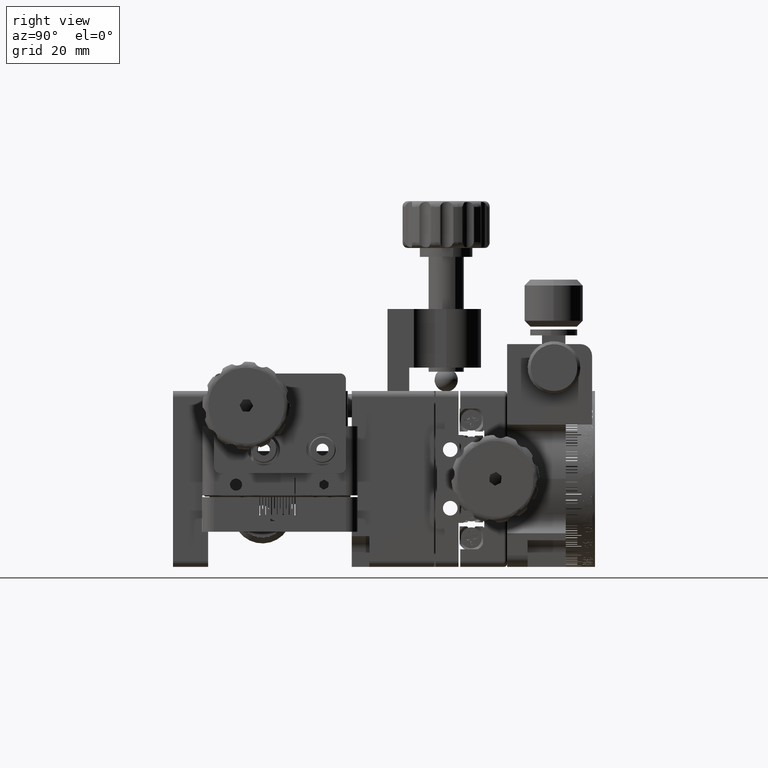
[diagram: clean part render]
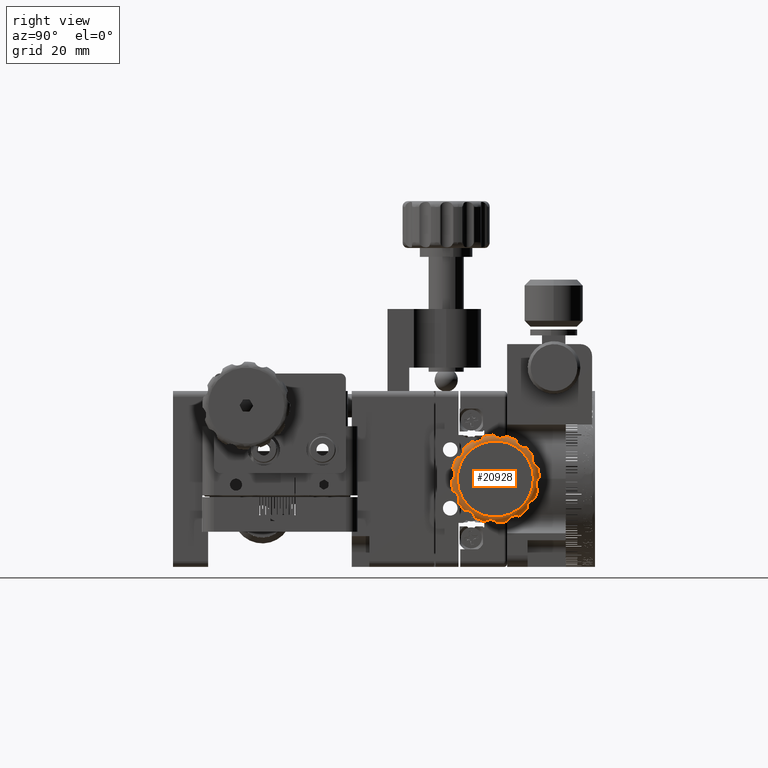
[diagram: same view with one face highlighted and labeled with its STEP entity id]
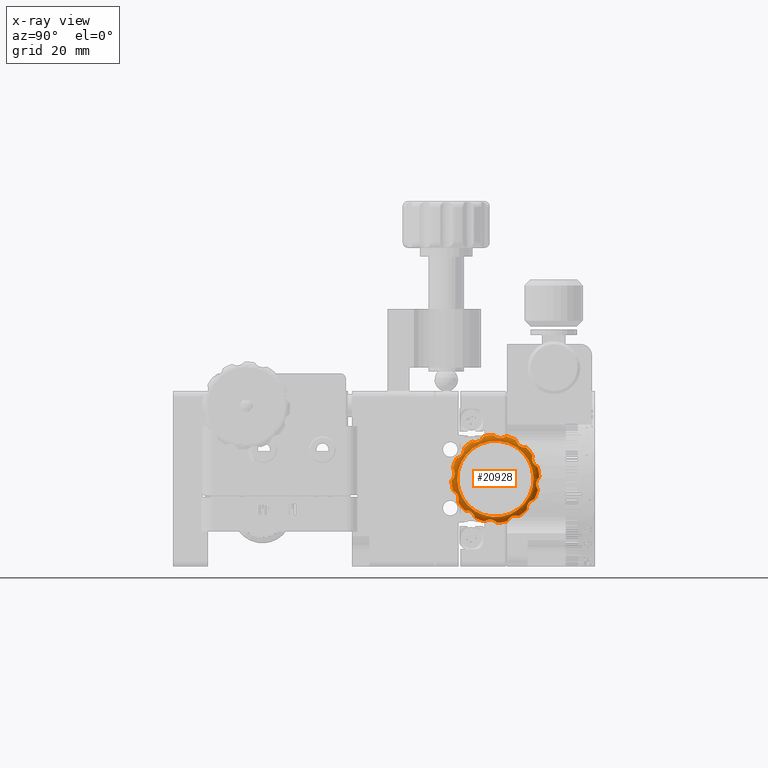
[diagram: x-ray of the same camera — body ghosted, the highlighted face saturated]
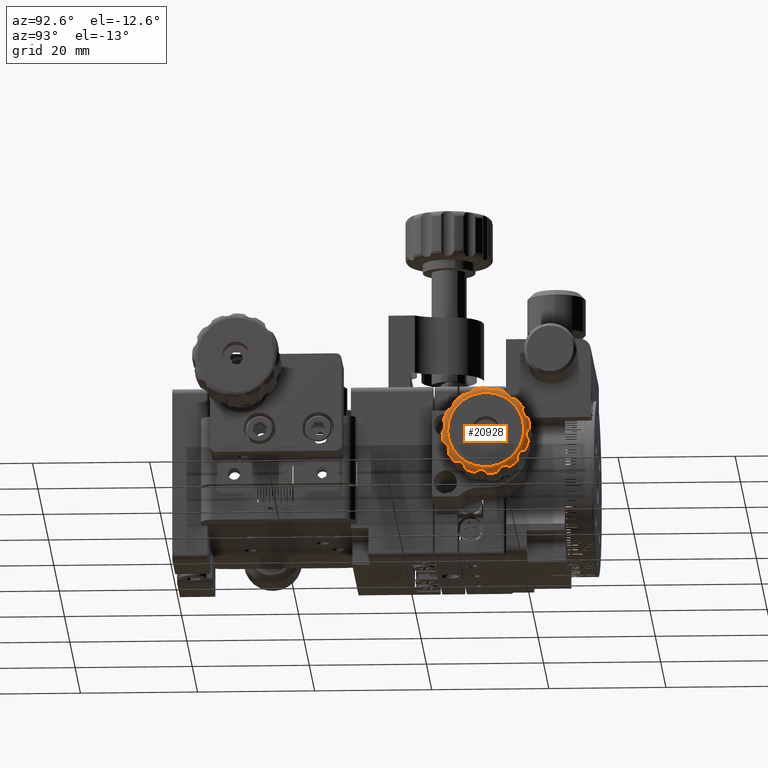
[diagram: same view with one face highlighted and labeled with its STEP entity id]
A machine part, right view. The second image highlights one B-rep face of the part: STEP entity #20928.
The next image is the same camera in x-ray: the body ghosted, the highlighted face saturated — about 0% of this face is hidden behind the body in this view.
A second angle (auxiliary view) of the same face is appended — the face is thin or edge-on in the first view.
In plain terms, the highlighted toroidal blend (fillet) surface has major radius 6.5 mm and minor (blend) radius 1 mm.
Its self-contained STEP definition (entity closure, byte-faithful):
#260 = EDGE_CURVE ( 'NONE', #61691, #50468, #27512, .T. ) ;
#384 = CARTESIAN_POINT ( 'NONE',  ( 47.26652873893148410, 48.68455943724477208, -3.020572762659842869 ) ) ;
#548 = CARTESIAN_POINT ( 'NONE',  ( 46.83185989159577645, 61.32273020653367723, 3.852477847529804489 ) ) ;
#858 = ORIENTED_EDGE ( 'NONE', *, *, #62199, .T. ) ;
#1039 = ORIENTED_EDGE ( 'NONE', *, *, #52085, .T. ) ;
#1058 = CARTESIAN_POINT ( 'NONE',  ( 46.83185989159770912, 53.28500716191043551, -7.200220927021965700 ) ) ;
#1060 = ORIENTED_EDGE ( 'NONE', *, *, #49188, .T. ) ;
#1061 = ORIENTED_EDGE ( 'NONE', *, *, #77938, .F. ) ;
#1431 = CARTESIAN_POINT ( 'NONE',  ( 47.26635177602136650, 55.93072871551091652, 6.940997425414120237 ) ) ;
#1506 = CARTESIAN_POINT ( 'NONE',  ( 47.24330478062866234, 49.08052759585812197, 3.826221039453158834 ) ) ;
#1908 = CARTESIAN_POINT ( 'NONE',  ( 46.98417736465966499, 48.62290576666092079, 3.581144400315304122 ) ) ;
#1944 = CARTESIAN_POINT ( 'NONE',  ( 47.14391553794396827, 62.17256693332509343, -0.1090325314070224316 ) ) ;
#2126 = CARTESIAN_POINT ( 'NONE',  ( 46.40041507641972629, 55.40805335564428447, -7.489006621978634648 ) ) ;
#2287 = EDGE_CURVE ( 'NONE', #17178, #10969, #31065, .T. ) ;
#2395 = B_SPLINE_CURVE_WITH_KNOTS ( 'NONE', 3,
 ( #40334, #3297, #28132, #77726 ),
 .UNSPECIFIED., .F., .F.,
 ( 4, 4 ),
 ( -6.324575239414876783E-06, 0.0004951179910540117477 ),
 .UNSPECIFIED. ) ;
#2428 = CARTESIAN_POINT ( 'NONE',  ( 46.40041507641978313, 62.24134818637973154, -1.960513259136835273 ) ) ;
#2564 = CARTESIAN_POINT ( 'NONE',  ( 46.54545196661403850, 51.53685944605913249, -6.651956488160115200 ) ) ;
#3118 = CARTESIAN_POINT ( 'NONE',  ( 46.69148169134702187, 49.82297133232177799, -5.382419387779893150 ) ) ;
#3248 = CARTESIAN_POINT ( 'NONE',  ( 47.09930507970731384, 47.93446650023034294, 1.472619361597266252 ) ) ;
#3297 = CARTESIAN_POINT ( 'NONE',  ( 46.54631419925591018, 60.26207300170399606, 5.346921843518500417 ) ) ;
#3681 = CIRCLE ( 'NONE', #27116, 6.500000000000055067 ) ;
#3832 = VERTEX_POINT ( 'NONE', #15782 ) ;
#4234 = EDGE_CURVE ( 'NONE', #19371, #60169, #19230, .T. ) ;
#4289 = CARTESIAN_POINT ( 'NONE',  ( 46.40041507641972629, 53.04160929456984519, -7.239225632673042199 ) ) ;
#4345 = CARTESIAN_POINT ( 'NONE',  ( 47.09966414584079786, 51.36153836937482708, -6.233898171381881070 ) ) ;
#4383 = CARTESIAN_POINT ( 'NONE',  ( 46.40041507641978313, 55.00212255370681902, 2.549339453190980450E-15 ) ) ;
#4609 = EDGE_CURVE ( 'NONE', #17178, #13875, #54940, .T. ) ;
#4674 = CARTESIAN_POINT ( 'NONE',  ( 47.40041507641979024, 55.00212255370681902, 2.697900290614080356E-15 ) ) ;
#4684 = CARTESIAN_POINT ( 'NONE',  ( 46.54545196661545958, 47.50872769626775494, -0.3249723620626735476 ) ) ;
#4758 = CARTESIAN_POINT ( 'NONE',  ( 46.83185989159771623, 49.91494653967091466, -5.377016539763300074 ) ) ;
#4798 = DIRECTION ( 'NONE',  ( 0.000000000000000000, 0.1559978404280428221, -0.9877573962172021549 ) ) ;
#4888 = CARTESIAN_POINT ( 'NONE',  ( 47.09930507970734226, 48.14504318538667604, -2.258502249490049962 ) ) ;
#5375 = CARTESIAN_POINT ( 'NONE',  ( 46.40041507641978313, 55.00212255370681902, 2.549339453190980450E-15 ) ) ;
#5446 = ORIENTED_EDGE ( 'NONE', *, *, #73172, .T. ) ;
#5459 = ORIENTED_EDGE ( 'NONE', *, *, #4234, .T. ) ;
#5564 = CARTESIAN_POINT ( 'NONE',  ( 46.54545196661467799, 55.32709491576809313, -7.493394857439151124 ) ) ;
#5693 = CARTESIAN_POINT ( 'NONE',  ( 47.26635177602128124, 48.52673937479362110, -2.666302186473985980 ) ) ;
#5747 = B_SPLINE_CURVE_WITH_KNOTS ( 'NONE', 3,
 ( #56954, #7723, #57745, #58150 ),
 .UNSPECIFIED., .F., .F.,
 ( 4, 4 ),
 ( -6.324575239395937127E-06, 0.0004951179910539754269 ),
 .UNSPECIFIED. ) ;
#5854 = CARTESIAN_POINT ( 'NONE',  ( 47.26652873893158358, 61.31968567016873806, 3.020572762659762489 ) ) ;
#6010 = CARTESIAN_POINT ( 'NONE',  ( 46.91361072285731382, 60.37599268387251783, -5.033613212670428716 ) ) ;
#6028 = ORIENTED_EDGE ( 'NONE', *, *, #10285, .F. ) ;
#6702 = B_SPLINE_CURVE_WITH_KNOTS ( 'NONE', 3,
 ( #78237, #17667, #34769, #42481 ),
 .UNSPECIFIED., .F., .F.,
 ( 4, 4 ),
 ( 6.539897438887406649E-16, 0.0004984791478706789404 ),
 .UNSPECIFIED. ) ;
#6766 = CARTESIAN_POINT ( 'NONE',  ( 46.83185989159572671, 55.17816241077103001, -7.400045718467299416 ) ) ;
#6907 = CARTESIAN_POINT ( 'NONE',  ( 46.54545196661444351, 54.67715019164599966, 7.493394857439069412 ) ) ;
#7011 = B_SPLINE_CURVE_WITH_KNOTS ( 'NONE', 3,
 ( #8686, #58309, #2564, #41208 ),
 .UNSPECIFIED., .F., .F.,
 ( 4, 4 ),
 ( 6.546507166991950177E-16, 0.0004984791478706762299 ),
 .UNSPECIFIED. ) ;
#7723 = CARTESIAN_POINT ( 'NONE',  ( 46.54631419925579650, 49.65520071018798376, 5.259950447997037593 ) ) ;
#7985 = CARTESIAN_POINT ( 'NONE',  ( 46.83185989159777307, 47.80190162668481690, 1.717115391796209645 ) ) ;
#8151 = ORIENTED_EDGE ( 'NONE', *, *, #58143, .F. ) ;
#8160 = CARTESIAN_POINT ( 'NONE',  ( 47.26635177602123861, 48.06112512829248828, 0.9286061618040712951 ) ) ;
#8450 = CARTESIAN_POINT ( 'NONE',  ( 47.14391553794400380, 51.51132530593506687, 6.264303254876266713 ) ) ;
#8572 = VERTEX_POINT ( 'NONE', #47474 ) ;
#8626 = B_SPLINE_CURVE_WITH_KNOTS ( 'NONE', 3,
 ( #54437, #43847, #17823, #31258, #80031, #30053, #23932, #67413, #36960, #60930, #68610, #43036, #6010, #48753 ),
 .UNSPECIFIED., .F., .F.,
 ( 4, 2, 2, 2, 2, 2, 4 ),
 ( 0.0004549188434785387072, 0.0007454011220209803704, 0.001035883400563422088, 0.001616847957648304655, 0.002197812514733187440, 0.002488294793275627748, 0.002778777071818067622 ),
 .UNSPECIFIED. ) ;
#8686 = CARTESIAN_POINT ( 'NONE',  ( 46.83185989159573381, 51.45455468276929167, -6.496647509891115391 ) ) ;
#8703 = EDGE_CURVE ( 'NONE', #55317, #32320, #16569, .T. ) ;
#8791 = DIRECTION ( 'NONE',  ( 0.000000000000000000, 0.1559978404280816522, -0.9877573962171960487 ) ) ;
#9171 = B_SPLINE_CURVE_WITH_KNOTS ( 'NONE', 3,
 ( #50023, #50419, #57291, #62979, #1944, #26384, #75961, #20276, #69861, #31726, #44686, #75565, #69449, #13768 ),
 .UNSPECIFIED., .F., .F.,
 ( 4, 2, 2, 2, 2, 2, 4 ),
 ( 0.0004549188434784912733, 0.0007454011220208974289, 0.001035883400563303476, 0.001616847957648116004, 0.002197812514732928532, 0.002488294793275338049, 0.002778777071817747999 ),
 .UNSPECIFIED. ) ;
#9246 = CARTESIAN_POINT ( 'NONE',  ( 46.83185989159778018, 52.88907764072052231, 7.094131931559387816 ) ) ;
#9643 = CARTESIAN_POINT ( 'NONE',  ( 46.98376932794782590, 50.03657449360133569, -5.372764278862589116 ) ) ;
#9708 = CARTESIAN_POINT ( 'NONE',  ( 46.40041507641971918, 59.09817225135259378, -6.282704582774549351 ) ) ;
#9835 = CARTESIAN_POINT ( 'NONE',  ( 46.83185989159577645, 58.54969042464426110, 6.496647509891009697 ) ) ;
#9865 = ORIENTED_EDGE ( 'NONE', *, *, #76460, .T. ) ;
#10285 = EDGE_CURVE ( 'NONE', #73685, #68773, #46262, .T. ) ;
#10489 = CARTESIAN_POINT ( 'NONE',  ( 46.40041507641978313, 55.00212255370681902, 2.549339453190980450E-15 ) ) ;
#10635 = B_SPLINE_CURVE_WITH_KNOTS ( 'NONE', 3,
 ( #23242, #35442, #29770, #42760 ),
 .UNSPECIFIED., .F., .F.,
 ( 4, 4 ),
 ( -6.324575239422653393E-06, 0.0004951179910540233486 ),
 .UNSPECIFIED. ) ;
#10726 = EDGE_CURVE ( 'NONE', #61691, #73542, #26025, .T. ) ;
#10923 = ORIENTED_EDGE ( 'NONE', *, *, #34790, .T. ) ;
#10969 = VERTEX_POINT ( 'NONE', #40823 ) ;
#11456 = CARTESIAN_POINT ( 'NONE',  ( 46.83185989159577645, 62.40216827217401629, 0.1760398570642256189 ) ) ;
#11565 = CARTESIAN_POINT ( 'NONE',  ( 47.26635177602138072, 61.47750573261986062, 2.666302186473883840 ) ) ;
#11827 = CARTESIAN_POINT ( 'NONE',  ( 46.91361072285729961, 57.13922399673358399, -7.046171980080425890 ) ) ;
#12262 = ORIENTED_EDGE ( 'NONE', *, *, #4609, .F. ) ;
#12294 = ORIENTED_EDGE ( 'NONE', *, *, #56432, .F. ) ;
#12749 = CARTESIAN_POINT ( 'NONE',  ( 46.40041507641978313, 55.00212255370681902, 2.549339453190980450E-15 ) ) ;
#12924 = CARTESIAN_POINT ( 'NONE',  ( 46.54631419925642888, 56.88391234256131668, 7.260545372535283093 ) ) ;
#13257 = CARTESIAN_POINT ( 'NONE',  ( 47.24285028264094422, 56.12885871328447251, 6.960216519462662177 ) ) ;
#13398 = CARTESIAN_POINT ( 'NONE',  ( 46.69147103026352141, 54.76140008203516629, 7.465666433907837352 ) ) ;
#13768 = CARTESIAN_POINT ( 'NONE',  ( 46.83185989159776597, 62.20234348072867192, -1.717115391796204094 ) ) ;
#13875 = VERTEX_POINT ( 'NONE', #66184 ) ;
#13880 = VERTEX_POINT ( 'NONE', #78799 ) ;
#13929 = B_SPLINE_CURVE_WITH_KNOTS ( 'NONE', 3,
 ( #66487, #40505, #4684, #48228 ),
 .UNSPECIFIED., .F., .F.,
 ( 4, 4 ),
 ( 6.385659358184430739E-16, 0.0004984791478706242967 ),
 .UNSPECIFIED. ) ;
#14052 = CARTESIAN_POINT ( 'NONE',  ( 47.09966414584092576, 55.03801185626298320, 7.219006273187938305 ) ) ;
#14246 = CARTESIAN_POINT ( 'NONE',  ( 46.83185989159776597, 62.20234348072867192, -1.717115391796204094 ) ) ;
#14262 = CARTESIAN_POINT ( 'NONE',  ( 47.14363800284768047, 47.96672646209350432, 1.390886301184954377 ) ) ;
#14487 = AXIS2_PLACEMENT_3D ( 'NONE', #4383, #52819, #4798 ) ;
#14546 = CARTESIAN_POINT ( 'NONE',  ( 46.91361072285738487, 52.86502111068007537, 7.046171980080373487 ) ) ;
#14581 = CARTESIAN_POINT ( 'NONE',  ( 46.54545196661344164, 61.32910667980730324, 4.028131749790518690 ) ) ;
#14635 = ORIENTED_EDGE ( 'NONE', *, *, #19364, .F. ) ;
#14923 = CARTESIAN_POINT ( 'NONE',  ( 47.26635177602130966, 49.45534553659773280, 4.274695238940146247 ) ) ;
#14951 = VERTEX_POINT ( 'NONE', #24615 ) ;
#15140 = CARTESIAN_POINT ( 'NONE',  ( 47.09930507970733515, 53.52950319210930985, -7.067656053476403244 ) ) ;
#15351 = CARTESIAN_POINT ( 'NONE',  ( 46.91302161328813725, 51.20099752694444106, 6.306450688751716882 ) ) ;
#15360 = CARTESIAN_POINT ( 'NONE',  ( 46.98417736465959393, 51.42097815339126043, -6.379216787045809411 ) ) ;
#15539 = CARTESIAN_POINT ( 'NONE',  ( 47.26635177602126703, 54.07351639190256520, -6.940997425414246358 ) ) ;
#15701 = CARTESIAN_POINT ( 'NONE',  ( 46.83185989159778018, 47.90799062214721005, -2.113044912986227430 ) ) ;
#15782 = CARTESIAN_POINT ( 'NONE',  ( 46.40041507641974050, 51.60916562937399732, -6.688635384712160459 ) ) ;
#16085 = CARTESIAN_POINT ( 'NONE',  ( 46.54545196661355533, 58.46738566135528004, 6.651956488159590286 ) ) ;
#16148 = CARTESIAN_POINT ( 'NONE',  ( 47.09930507970727831, 50.19296874972039291, -5.384460006722787462 ) ) ;
#16326 = CARTESIAN_POINT ( 'NONE',  ( 46.83185989159776597, 62.09625448526612956, 2.113044912986088875 ) ) ;
#16458 = VERTEX_POINT ( 'NONE', #50936 ) ;
#16520 = CARTESIAN_POINT ( 'NONE',  ( 46.40041507641979734, 47.75251262251598661, -1.921758529467813670 ) ) ;
#16566 = CARTESIAN_POINT ( 'NONE',  ( 47.14363800284765205, 50.27988163729807525, -5.397388590430336919 ) ) ;
#16569 = B_SPLINE_CURVE_WITH_KNOTS ( 'NONE', 3,
 ( #43394, #19767, #32001, #14052, #50690, #25079, #50307, #1431, #13257, #69745, #55599, #80390, #75453, #75067 ),
 .UNSPECIFIED., .F., .F.,
 ( 4, 2, 2, 2, 2, 2, 4 ),
 ( 0.0004549188434784593978, 0.0007454011220208861532, 0.001035883400563313017, 0.001616847957648172383, 0.002197812514733032182, 0.002488294793275449071, 0.002778777071817865960 ),
 .UNSPECIFIED. ) ;
#16662 = EDGE_CURVE ( 'NONE', #74899, #13880, #10635, .T. ) ;
#16672 = CARTESIAN_POINT ( 'NONE',  ( 46.40041507641978313, 62.25173248489745248, 1.921758529467694432 ) ) ;
#16720 = CARTESIAN_POINT ( 'NONE',  ( 47.14363800284779416, 57.31527772891130468, -6.788274891615305506 ) ) ;
#16759 = EDGE_CURVE ( 'NONE', #71339, #69847, #55320, .T. ) ;
#16890 = CARTESIAN_POINT ( 'NONE',  ( 46.98417736465979289, 58.58326695402208628, 6.379216787045808523 ) ) ;
#16976 = ORIENTED_EDGE ( 'NONE', *, *, #18926, .T. ) ;
#17126 = CARTESIAN_POINT ( 'NONE',  ( 47.09930507970739200, 57.26062480319674108, -6.857079368320121660 ) ) ;
#17178 = VERTEX_POINT ( 'NONE', #29256 ) ;
#17257 = CIRCLE ( 'NONE', #36803, 7.500000000000063061 ) ;
#17535 = EDGE_CURVE ( 'NONE', #79412, #73542, #64911, .T. ) ;
#17627 = EDGE_CURVE ( 'NONE', #73685, #52695, #5747, .T. ) ;
#17652 = B_SPLINE_CURVE_WITH_KNOTS ( 'NONE', 3,
 ( #76066, #40288, #77676, #77270, #63875, #46387, #33013, #8160, #20379, #14262, #3248, #57789, #71146, #52101 ),
 .UNSPECIFIED., .F., .F.,
 ( 4, 2, 2, 2, 2, 2, 4 ),
 ( 0.0004549188434784928454, 0.0007454011220209460012, 0.001035883400563399103, 0.001616847957648312462, 0.002197812514733224736, 0.002488294793275684126, 0.002778777071818143082 ),
 .UNSPECIFIED. ) ;
#17667 = CARTESIAN_POINT ( 'NONE',  ( 46.69147103026347878, 48.65702700159749838, -3.941304992683127395 ) ) ;
#17823 = CARTESIAN_POINT ( 'NONE',  ( 46.98417736465979999, 61.38133934075258935, -3.581144400315326770 ) ) ;
#17895 = AXIS2_PLACEMENT_3D ( 'NONE', #58412, #57210, #8791 ) ;
#18094 = VERTEX_POINT ( 'NONE', #31188 ) ;
#18098 = CARTESIAN_POINT ( 'NONE',  ( 46.83185989159776597, 56.71923794550303199, 7.200220927021832473 ) ) ;
#18099 = VERTEX_POINT ( 'NONE', #55965 ) ;
#18108 = CARTESIAN_POINT ( 'NONE',  ( 46.83185989159577645, 61.49877006359776033, -3.547567870937510470 ) ) ;
#18467 = CARTESIAN_POINT ( 'NONE',  ( 46.98417736465975736, 61.29309297252319055, 3.733991593672134179 ) ) ;
#18706 = CARTESIAN_POINT ( 'NONE',  ( 47.09966414584083338, 48.73233507976863876, -3.578422088856167527 ) ) ;
#18926 = EDGE_CURVE ( 'NONE', #20215, #64660, #52965, .T. ) ;
#19126 = CARTESIAN_POINT ( 'NONE',  ( 46.83185989159578355, 54.82608269664255118, 7.400045718467247902 ) ) ;
#19181 = CARTESIAN_POINT ( 'NONE',  ( 46.69147103026347878, 48.41630452992603750, 3.524361441224751701 ) ) ;
#19230 = B_SPLINE_CURVE_WITH_KNOTS ( 'NONE', 3,
 ( #77498, #72181, #16085, #23019 ),
 .UNSPECIFIED., .F., .F.,
 ( 4, 4 ),
 ( 6.542650507101479533E-16, 0.0004984791478706514017 ),
 .UNSPECIFIED. ) ;
#19273 = CARTESIAN_POINT ( 'NONE',  ( 46.83185989159776597, 62.09625448526612956, 2.113044912986088875 ) ) ;
#19277 = VERTEX_POINT ( 'NONE', #2126 ) ;
#19364 = EDGE_CURVE ( 'NONE', #36816, #32006, #54853, .T. ) ;
#19371 = VERTEX_POINT ( 'NONE', #9835 ) ;
#19572 = ORIENTED_EDGE ( 'NONE', *, *, #62471, .T. ) ;
#19670 = ORIENTED_EDGE ( 'NONE', *, *, #38687, .F. ) ;
#19767 = CARTESIAN_POINT ( 'NONE',  ( 46.91302161328811593, 54.86347706194568019, 7.362109017554042900 ) ) ;
#19870 = VERTEX_POINT ( 'NONE', #78669 ) ;
#19947 = CARTESIAN_POINT ( 'NONE',  ( 46.40041507641979024, 47.51311593172803782, -0.4059308019376036136 ) ) ;
#20134 = CARTESIAN_POINT ( 'NONE',  ( 46.69148169134700765, 57.07385886665347385, -7.176486221650426600 ) ) ;
#20215 = VERTEX_POINT ( 'NONE', #59479 ) ;
#20276 = CARTESIAN_POINT ( 'NONE',  ( 47.26635177602135229, 61.94311997912095791, -0.9286061618041123733 ) ) ;
#20351 = ORIENTED_EDGE ( 'NONE', *, *, #260, .F. ) ;
#20379 = CARTESIAN_POINT ( 'NONE',  ( 47.24285028264080211, 48.04190603424395078, 1.126736159577502283 ) ) ;
#20490 = CIRCLE ( 'NONE', #17895, 7.500000000000063949 ) ;
#20541 = CARTESIAN_POINT ( 'NONE',  ( 46.54631419925638625, 57.00271747824425006, -7.228711632372480267 ) ) ;
#20695 = CARTESIAN_POINT ( 'NONE',  ( 46.83185989159577645, 61.32273020653367723, 3.852477847529804489 ) ) ;
#20705 = CARTESIAN_POINT ( 'NONE',  ( 46.40041507641979734, 54.59619175176923989, 7.489006621978531619 ) ) ;
#20928 = ADVANCED_FACE ( 'NONE', ( #27673, #58185 ), #67652, .T. ) ;
#21036 = CARTESIAN_POINT ( 'NONE',  ( 46.83185989159777307, 49.62510601394364329, 5.087176014035736493 ) ) ;
#21175 = CARTESIAN_POINT ( 'NONE',  ( 46.83185989159578355, 47.60207683523934463, -0.1760398570642777161 ) ) ;
#21246 = CARTESIAN_POINT ( 'NONE',  ( 47.24285028264083763, 53.87538639412908736, -6.960216519462779416 ) ) ;
#21252 = VERTEX_POINT ( 'NONE', #66163 ) ;
#21377 = CARTESIAN_POINT ( 'NONE',  ( 46.98376932794803906, 59.96767061381225972, 5.372764278862395493 ) ) ;
#21443 = CARTESIAN_POINT ( 'NONE',  ( 47.26635177602137361, 52.33582036723288411, 6.475383178913026505 ) ) ;
#21848 = VERTEX_POINT ( 'NONE', #52105 ) ;
#21946 = ORIENTED_EDGE ( 'NONE', *, *, #52513, .F. ) ;
#22353 = CARTESIAN_POINT ( 'NONE',  ( 46.83185989159776597, 62.09625448526612956, 2.113044912986088875 ) ) ;
#22415 = ORIENTED_EDGE ( 'NONE', *, *, #29001, .F. ) ;
#22438 = ORIENTED_EDGE ( 'NONE', *, *, #17627, .T. ) ;
#22587 = CARTESIAN_POINT ( 'NONE',  ( 47.26635177602138782, 59.27681779264698037, 5.546777017108909469 ) ) ;
#22642 = EDGE_CURVE ( 'NONE', #19371, #59242, #55414, .T. ) ;
#22735 = CARTESIAN_POINT ( 'NONE',  ( 46.54545196661401008, 59.03025430349831737, -6.326984126099898020 ) ) ;
#22946 = B_SPLINE_CURVE_WITH_KNOTS ( 'NONE', 3,
 ( #548, #25377, #18467, #61967, #48592, #68451, #5854, #11565, #61166, #48996, #49396, #74146, #55883, #19273 ),
 .UNSPECIFIED., .F., .F.,
 ( 4, 2, 2, 2, 2, 2, 4 ),
 ( 0.0004549188434784715409, 0.0007454011220209054520, 0.001035883400563339472, 0.001616847957648197970, 0.002197812514733057335, 0.002488294793275479862, 0.002778777071817902389 ),
 .UNSPECIFIED. ) ;
#23019 = CARTESIAN_POINT ( 'NONE',  ( 46.40041507641978313, 58.39507947803960519, 6.688635384712055654 ) ) ;
#23242 = CARTESIAN_POINT ( 'NONE',  ( 46.40041507641979734, 53.08036402423908129, 7.249609931190645895 ) ) ;
#23264 = VERTEX_POINT ( 'NONE', #25534 ) ;
#23519 = DIRECTION ( 'NONE',  ( 0.000000000000000000, 0.1559978404280576159, -0.9877573962171998234 ) ) ;
#23554 = ORIENTED_EDGE ( 'NONE', *, *, #40396, .F. ) ;
#23810 = DIRECTION ( 'NONE',  ( 0.000000000000000000, 0.1559978404280544795, -0.9877573962172002675 ) ) ;
#23932 = CARTESIAN_POINT ( 'NONE',  ( 47.26652873893160489, 60.77679685838042900, -3.960883767537748845 ) ) ;
#24037 = CARTESIAN_POINT ( 'NONE',  ( 47.26652873893155515, 58.02269531636659394, -6.317563116461939465 ) ) ;
#24091 = ORIENTED_EDGE ( 'NONE', *, *, #41543, .F. ) ;
#24565 = CIRCLE ( 'NONE', #27109, 7.500000000000063061 ) ;
#24615 = CARTESIAN_POINT ( 'NONE',  ( 46.83185989159577645, 61.32273020653367723, 3.852477847529804489 ) ) ;
#25079 = CARTESIAN_POINT ( 'NONE',  ( 47.24330478062869787, 55.35492969544345243, 7.041362184145302017 ) ) ;
#25290 = B_SPLINE_CURVE_WITH_KNOTS ( 'NONE', 3,
 ( #16672, #78462, #71932, #22353 ),
 .UNSPECIFIED., .F., .F.,
 ( 4, 4 ),
 ( -6.324575239399670848E-06, 0.0004951179910540346243 ),
 .UNSPECIFIED. ) ;
#25377 = CARTESIAN_POINT ( 'NONE',  ( 46.91302161328812304, 61.30857324245856432, 3.801125026762330883 ) ) ;
#25445 = B_SPLINE_CURVE_WITH_KNOTS ( 'NONE', 3,
 ( #20695, #32527, #14581, #50439 ),
 .UNSPECIFIED., .F., .F.,
 ( 4, 4 ),
 ( 6.787542037719664901E-16, 0.0004984791478706683153 ),
 .UNSPECIFIED. ) ;
#25534 = CARTESIAN_POINT ( 'NONE',  ( 46.40041507641978313, 62.49112917568534442, 0.4059308019375754140 ) ) ;
#25543 = CARTESIAN_POINT ( 'NONE',  ( 46.83185989159770202, 60.37913909346996633, -5.087176014035722282 ) ) ;
#25554 = CARTESIAN_POINT ( 'NONE',  ( 46.69148169134707160, 56.79618938757744218, 7.250887534331584838 ) ) ;
#25675 = AXIS2_PLACEMENT_3D ( 'NONE', #65647, #53483, #54701 ) ;
#26025 = B_SPLINE_CURVE_WITH_KNOTS ( 'NONE', 3,
 ( #16520, #71776, #47849, #15701 ),
 .UNSPECIFIED., .F., .F.,
 ( 4, 4 ),
 ( -6.324575239422055388E-06, 0.0004951179910539487555 ),
 .UNSPECIFIED. ) ;
#26076 = VERTEX_POINT ( 'NONE', #71720 ) ;
#26384 = CARTESIAN_POINT ( 'NONE',  ( 47.24330478062869787, 62.04348473785211837, -0.3528071417366696605 ) ) ;
#26967 = CARTESIAN_POINT ( 'NONE',  ( 46.54545196661277373, 50.97399080391715387, 6.326984126101164563 ) ) ;
#27109 = AXIS2_PLACEMENT_3D ( 'NONE', #10489, #36547, #23519 ) ;
#27116 = AXIS2_PLACEMENT_3D ( 'NONE', #4674, #66479, #23810 ) ;
#27359 = CARTESIAN_POINT ( 'NONE',  ( 46.83185989159572671, 55.17816241077103001, -7.400045718467299416 ) ) ;
#27512 = CIRCLE ( 'NONE', #14487, 7.500000000000063061 ) ;
#27567 = CARTESIAN_POINT ( 'NONE',  ( 47.09930507970744173, 52.74362030421690406, 6.857079368320074586 ) ) ;
#27673 = FACE_OUTER_BOUND ( 'NONE', #49115, .T. ) ;
#27896 = CARTESIAN_POINT ( 'NONE',  ( 47.14363800284787231, 59.72436347011546331, 5.397388590430126420 ) ) ;
#27975 = VERTEX_POINT ( 'NONE', #73221 ) ;
#28132 = CARTESIAN_POINT ( 'NONE',  ( 46.69148169134709292, 60.18127377509173215, 5.382419387779680875 ) ) ;
#28297 = CARTESIAN_POINT ( 'NONE',  ( 46.83185989159577645, 58.54969042464426110, 6.496647509891009697 ) ) ;
#29001 = EDGE_CURVE ( 'NONE', #70042, #3832, #66710, .T. ) ;
#29256 = CARTESIAN_POINT ( 'NONE',  ( 46.83185989159571960, 58.85460040123664527, -6.320607652826833345 ) ) ;
#29274 = CARTESIAN_POINT ( 'NONE',  ( 46.40041507641978313, 55.00212255370681902, 2.549339453190980450E-15 ) ) ;
#29311 = ORIENTED_EDGE ( 'NONE', *, *, #59238, .T. ) ;
#29535 = CARTESIAN_POINT ( 'NONE',  ( 46.91302161328815146, 58.56310654449848130, 6.445096180512884132 ) ) ;
#29770 = CARTESIAN_POINT ( 'NONE',  ( 46.69148169134705739, 52.93038624075995102, 7.176486221650424824 ) ) ;
#30012 = CARTESIAN_POINT ( 'NONE',  ( 46.40041507641972629, 55.40805335564428447, -7.489006621978634648 ) ) ;
#30053 = CARTESIAN_POINT ( 'NONE',  ( 47.24330478062875471, 60.92371751155531712, -3.826221039453200579 ) ) ;
#30238 = EDGE_CURVE ( 'NONE', #49525, #77123, #17257, .T. ) ;
#30460 = CARTESIAN_POINT ( 'NONE',  ( 46.40041507641978313, 58.39507947803960519, 6.688635384712055654 ) ) ;
#30621 = DIRECTION ( 'NONE',  ( -1.000000000000000000, -2.518573626014765976E-16, -1.485608374231000780E-16 ) ) ;
#30663 = DIRECTION ( 'NONE',  ( 0.000000000000000000, 0.1559978404280640829, -0.9877573962171987132 ) ) ;
#30878 = CARTESIAN_POINT ( 'NONE',  ( 46.83185989159776597, 56.71923794550303199, 7.200220927021832473 ) ) ;
#31065 = B_SPLINE_CURVE_WITH_KNOTS ( 'NONE', 3,
 ( #41446, #79649, #22735, #9708 ),
 .UNSPECIFIED., .F., .F.,
 ( 4, 4 ),
 ( 6.414279333138379469E-16, 0.0004984791478706431618 ),
 .UNSPECIFIED. ) ;
#31188 = CARTESIAN_POINT ( 'NONE',  ( 46.83185989159579066, 51.14964470617693593, 6.320607652826807588 ) ) ;
#31258 = CARTESIAN_POINT ( 'NONE',  ( 47.09966414584096839, 61.23602072508861482, -3.640584184331748130 ) ) ;
#31539 = ORIENTED_EDGE ( 'NONE', *, *, #33089, .T. ) ;
#31726 = CARTESIAN_POINT ( 'NONE',  ( 47.14363800284779416, 62.03751864531993476, -1.390886301185056739 ) ) ;
#32001 = CARTESIAN_POINT ( 'NONE',  ( 46.98417736465976446, 54.91387618547735627, 7.315135993987482266 ) ) ;
#32006 = VERTEX_POINT ( 'NONE', #1058 ) ;
#32160 = CARTESIAN_POINT ( 'NONE',  ( 46.83185989159770202, 60.37913909346996633, -5.087176014035722282 ) ) ;
#32320 = VERTEX_POINT ( 'NONE', #18098 ) ;
#32527 = CARTESIAN_POINT ( 'NONE',  ( 46.69147103026348589, 61.34721810581607571, 3.941304992683040354 ) ) ;
#32837 = CARTESIAN_POINT ( 'NONE',  ( 46.40041507641978313, 60.31958965691199381, 5.289096672053766213 ) ) ;
#32846 = CARTESIAN_POINT ( 'NONE',  ( 46.40041507641971918, 60.29121922576066339, -5.317467103205187229 ) ) ;
#32872 = CARTESIAN_POINT ( 'NONE',  ( 46.91302161328805198, 48.55702637319389225, 3.560983990791690701 ) ) ;
#33008 = CIRCLE ( 'NONE', #62861, 7.500000000000063949 ) ;
#33013 = CARTESIAN_POINT ( 'NONE',  ( 47.26652873893145568, 48.02066602350910074, 0.5428888117882028075 ) ) ;
#33089 = EDGE_CURVE ( 'NONE', #72127, #23264, #78759, .T. ) ;
#33277 = CARTESIAN_POINT ( 'NONE',  ( 47.14391553794389722, 48.84685183023744059, 3.679647131846524921 ) ) ;
#33672 = CARTESIAN_POINT ( 'NONE',  ( 47.09930507970738489, 49.61766254698407153, 4.809153803986299103 ) ) ;
#33692 = CARTESIAN_POINT ( 'NONE',  ( 47.24285028264094422, 52.49779643153227227, 6.591092401483567897 ) ) ;
#33755 = ORIENTED_EDGE ( 'NONE', *, *, #17535, .F. ) ;
#33808 = EDGE_CURVE ( 'NONE', #21252, #19870, #38340, .T. ) ;
#33878 = CARTESIAN_POINT ( 'NONE',  ( 47.24330478062864103, 54.64931541196997955, -7.041362184145405934 ) ) ;
#34284 = ORIENTED_EDGE ( 'NONE', *, *, #30238, .F. ) ;
#34654 = CIRCLE ( 'NONE', #76176, 7.500000000000063061 ) ;
#34666 = CIRCLE ( 'NONE', #78823, 7.500000000000062172 ) ;
#34769 = CARTESIAN_POINT ( 'NONE',  ( 46.54545196661367612, 48.67513842760630638, -4.028131749790965443 ) ) ;
#34790 = EDGE_CURVE ( 'NONE', #27975, #19870, #59251, .T. ) ;
#34919 = EDGE_CURVE ( 'NONE', #8572, #55713, #25290, .T. ) ;
#35274 = CARTESIAN_POINT ( 'NONE',  ( 46.83185989159771623, 49.91494653967091466, -5.377016539763300074 ) ) ;
#35442 = CARTESIAN_POINT ( 'NONE',  ( 46.54631419925703995, 53.00152762917034011, 7.228711632372681883 ) ) ;
#35908 = ORIENTED_EDGE ( 'NONE', *, *, #69586, .F. ) ;
#36128 = ORIENTED_EDGE ( 'NONE', *, *, #16662, .T. ) ;
#36152 = CARTESIAN_POINT ( 'NONE',  ( 46.40041507641979734, 50.90607285606085242, 6.282704582774510271 ) ) ;
#36176 = CARTESIAN_POINT ( 'NONE',  ( 46.83185989159577645, 62.40216827217401629, 0.1760398570642256189 ) ) ;
#36243 = CARTESIAN_POINT ( 'NONE',  ( 47.24285028264083053, 48.41103015222311257, -2.504326122174652447 ) ) ;
#36308 = ORIENTED_EDGE ( 'NONE', *, *, #71271, .F. ) ;
#36435 = ORIENTED_EDGE ( 'NONE', *, *, #62919, .T. ) ;
#36547 = DIRECTION ( 'NONE',  ( -1.000000000000000000, -2.518573626014765976E-16, -1.485608374231000780E-16 ) ) ;
#36665 = CARTESIAN_POINT ( 'NONE',  ( 46.83185989159770202, 57.11516746669292388, -7.094131931559411797 ) ) ;
#36803 = AXIS2_PLACEMENT_3D ( 'NONE', #79365, #67155, #53763 ) ;
#36816 = VERTEX_POINT ( 'NONE', #61439 ) ;
#36902 = CIRCLE ( 'NONE', #43385, 7.500000000000063061 ) ;
#36960 = CARTESIAN_POINT ( 'NONE',  ( 47.24285028264093000, 60.46647879561266592, -4.455890397288164273 ) ) ;
#38340 = CIRCLE ( 'NONE', #60434, 7.500000000000063061 ) ;
#38687 = EDGE_CURVE ( 'NONE', #20215, #26076, #34666, .T. ) ;
#39126 = DIRECTION ( 'NONE',  ( -1.000000000000000000, -2.518573626014765976E-16, -1.485608374231000780E-16 ) ) ;
#39167 = VERTEX_POINT ( 'NONE', #47807 ) ;
#39609 = CARTESIAN_POINT ( 'NONE',  ( 46.83185989159776597, 60.08929856774253153, 5.377016539763122438 ) ) ;
#39776 = CARTESIAN_POINT ( 'NONE',  ( 46.98417736465975736, 51.26813096003462533, 6.290970418816340448 ) ) ;
#39858 = CARTESIAN_POINT ( 'NONE',  ( 46.40041507641972629, 53.04160929456984519, -7.239225632673042199 ) ) ;
#39888 = CARTESIAN_POINT ( 'NONE',  ( 46.40041507641978313, 55.00212255370681902, 2.549339453190980450E-15 ) ) ;
#40184 = CARTESIAN_POINT ( 'NONE',  ( 46.83185989159573381, 51.45455468276929167, -6.496647509891115391 ) ) ;
#40288 = CARTESIAN_POINT ( 'NONE',  ( 46.91302161328803066, 47.64001353615272194, -0.1386454917610331072 ) ) ;
#40334 = CARTESIAN_POINT ( 'NONE',  ( 46.40041507641978313, 60.31958965691199381, 5.289096672053766213 ) ) ;
#40396 = EDGE_CURVE ( 'NONE', #74899, #60047, #20490, .T. ) ;
#40505 = CARTESIAN_POINT ( 'NONE',  ( 46.69147103026349299, 47.53645611979876406, -0.2407224716714685964 ) ) ;
#40544 = CARTESIAN_POINT ( 'NONE',  ( 47.14363800284777284, 49.60473396327650164, 4.722240916408575906 ) ) ;
#40823 = CARTESIAN_POINT ( 'NONE',  ( 46.40041507641971918, 59.09817225135259378, -6.282704582774549351 ) ) ;
#41208 = CARTESIAN_POINT ( 'NONE',  ( 46.40041507641974050, 51.60916562937399732, -6.688635384712160459 ) ) ;
#41239 = CARTESIAN_POINT ( 'NONE',  ( 46.40041507641978313, 62.24134818637973154, -1.960513259136835273 ) ) ;
#41446 = CARTESIAN_POINT ( 'NONE',  ( 46.83185989159571960, 58.85460040123664527, -6.320607652826833345 ) ) ;
#41543 = EDGE_CURVE ( 'NONE', #46087, #46087, #3681, .T. ) ;
#41563 = VERTEX_POINT ( 'NONE', #18108 ) ;
#42008 = B_SPLINE_CURVE_WITH_KNOTS ( 'NONE', 3,
 ( #40184, #65341, #15360, #4345, #53178, #46674, #77956, #59673, #52783, #16566, #16148, #9643, #59272, #4758 ),
 .UNSPECIFIED., .F., .F.,
 ( 4, 2, 2, 2, 2, 2, 4 ),
 ( 0.0004549188434784977786, 0.0007454011220209843819, 0.001035883400563470877, 0.001616847957648426953, 0.002197812514733383030, 0.002488294793275870175, 0.002778777071818357754 ),
 .UNSPECIFIED. ) ;
#42038 = CARTESIAN_POINT ( 'NONE',  ( 46.40041507641978313, 55.00212255370681902, 2.549339453190980450E-15 ) ) ;
#42317 = CARTESIAN_POINT ( 'NONE',  ( 46.91361072285724987, 47.95595057362641711, -2.137101443026897307 ) ) ;
#42347 = CARTESIAN_POINT ( 'NONE',  ( 46.98417736465973604, 58.73611414737899850, -6.290970418816369758 ) ) ;
#42481 = CARTESIAN_POINT ( 'NONE',  ( 46.40041507641979734, 48.71941797093207072, -4.096049697645907983 ) ) ;
#42723 = CARTESIAN_POINT ( 'NONE',  ( 47.14363800284773021, 48.21384766209146733, -2.313155175204597569 ) ) ;
#42760 = CARTESIAN_POINT ( 'NONE',  ( 46.83185989159778018, 52.88907764072052231, 7.094131931559387816 ) ) ;
#43017 = AXIS2_PLACEMENT_3D ( 'NONE', #39888, #45575, #70339 ) ;
#43036 = CARTESIAN_POINT ( 'NONE',  ( 46.98376932794801775, 60.37488683256921007, -4.965548060105508199 ) ) ;
#43385 = AXIS2_PLACEMENT_3D ( 'NONE', #57026, #39126, #51328 ) ;
#43394 = CARTESIAN_POINT ( 'NONE',  ( 46.83185989159578355, 54.82608269664255118, 7.400045718467247902 ) ) ;
#43523 = CARTESIAN_POINT ( 'NONE',  ( 46.98376932794786853, 48.01544965051170522, -2.170176323987858868 ) ) ;
#43811 = ORIENTED_EDGE ( 'NONE', *, *, #54724, .F. ) ;
#43847 = CARTESIAN_POINT ( 'NONE',  ( 46.91302161328817277, 61.44721873421966052, -3.560983990791704912 ) ) ;
#44194 = VERTEX_POINT ( 'NONE', #21175 ) ;
#44335 = CARTESIAN_POINT ( 'NONE',  ( 46.40041507641979734, 54.59619175176923989, 7.489006621978531619 ) ) ;
#44362 = CARTESIAN_POINT ( 'NONE',  ( 46.83185989159770912, 53.28500716191043551, -7.200220927021965700 ) ) ;
#44686 = CARTESIAN_POINT ( 'NONE',  ( 47.09930507970742042, 62.06977860718314588, -1.472619361597424126 ) ) ;
#44834 = CARTESIAN_POINT ( 'NONE',  ( 46.40041507641979734, 53.08036402423908129, 7.249609931190645895 ) ) ;
#45447 = CARTESIAN_POINT ( 'NONE',  ( 46.98376932794794669, 49.62935827484425744, 4.965548060105352768 ) ) ;
#45575 = DIRECTION ( 'NONE',  ( 1.000000000000000000, 2.518573626014765976E-16, 1.485608374231000780E-16 ) ) ;
#45587 = EDGE_CURVE ( 'NONE', #55317, #60047, #71183, .T. ) ;
#45721 = CARTESIAN_POINT ( 'NONE',  ( 46.40041507641978313, 55.00212255370681902, 2.549339453190980450E-15 ) ) ;
#45806 = CARTESIAN_POINT ( 'NONE',  ( 46.40041507641979024, 47.76289692103369333, 1.960513259136837938 ) ) ;
#45869 = CARTESIAN_POINT ( 'NONE',  ( 47.24330478062874050, 51.78698140901467895, 6.274402099585209669 ) ) ;
#46087 = VERTEX_POINT ( 'NONE', #65159 ) ;
#46262 = CIRCLE ( 'NONE', #64409, 7.500000000000063949 ) ;
#46362 = CARTESIAN_POINT ( 'NONE',  ( 46.69148169134707160, 62.25301008803841540, -1.794066833870642919 ) ) ;
#46387 = CARTESIAN_POINT ( 'NONE',  ( 47.24330478062859839, 47.96076036956133493, 0.3528071417367009133 ) ) ;
#46460 = CARTESIAN_POINT ( 'NONE',  ( 46.98417736465964367, 55.09036892193608281, -7.315135993987560425 ) ) ;
#46600 = CARTESIAN_POINT ( 'NONE',  ( 46.91361072285735645, 60.03573576637718645, 5.373870130165706804 ) ) ;
#46616 = B_SPLINE_CURVE_WITH_KNOTS ( 'NONE', 3,
 ( #39858, #69924, #51666, #44362 ),
 .UNSPECIFIED., .F., .F.,
 ( 4, 4 ),
 ( -6.324575239435812050E-06, 0.0004951179910539309746 ),
 .UNSPECIFIED. ) ;
#46674 = CARTESIAN_POINT ( 'NONE',  ( 47.24330478062857708, 51.17590151425340395, -5.921594957848657970 ) ) ;
#46953 = ORIENTED_EDGE ( 'NONE', *, *, #45587, .T. ) ;
#47405 = CARTESIAN_POINT ( 'NONE',  ( 47.09930507970746305, 59.81127635769320960, 5.384460006722571634 ) ) ;
#47474 = CARTESIAN_POINT ( 'NONE',  ( 46.40041507641978313, 62.25173248489745248, 1.921758529467694432 ) ) ;
#47540 = EDGE_CURVE ( 'NONE', #21252, #74833, #69884, .T. ) ;
#47807 = CARTESIAN_POINT ( 'NONE',  ( 46.40041507641978313, 61.28482713648136126, 4.096049697645733900 ) ) ;
#47849 = CARTESIAN_POINT ( 'NONE',  ( 46.69148169134707160, 47.82563633205619880, -2.071736312946802716 ) ) ;
#48228 = CARTESIAN_POINT ( 'NONE',  ( 46.40041507641979024, 47.51311593172803782, -0.4059308019376036136 ) ) ;
#48264 = CARTESIAN_POINT ( 'NONE',  ( 46.83185989159778018, 47.90799062214721005, -2.113044912986227430 ) ) ;
#48547 = DIRECTION ( 'NONE',  ( -1.000000000000000000, -2.518573626014765976E-16, -1.485608374231000780E-16 ) ) ;
#48562 = CARTESIAN_POINT ( 'NONE',  ( 46.83185989159777307, 47.80190162668481690, 1.717115391796209645 ) ) ;
#48592 = CARTESIAN_POINT ( 'NONE',  ( 47.14391553794400380, 61.26642580858311504, 3.490797247771705525 ) ) ;
#48753 = CARTESIAN_POINT ( 'NONE',  ( 46.83185989159770202, 60.37913909346996633, -5.087176014035722282 ) ) ;
#48996 = CARTESIAN_POINT ( 'NONE',  ( 47.14363800284785100, 61.79039744532205702, 2.313155175204448799 ) ) ;
#49115 = EDGE_LOOP ( 'NONE', ( #24091 ) ) ;
#49188 = EDGE_CURVE ( 'NONE', #18099, #32320, #65683, .T. ) ;
#49213 = EDGE_LOOP ( 'NONE', ( #12294, #57485, #1061, #5446, #70848, #5459, #50505, #1060, #58481, #46953, #23554, #36128, #58354, #19572, #6028, #22438, #58781, #10923, #66660, #55169, #21946, #51367, #20351, #67032, #33755, #858, #19670, #16976, #60583, #29311, #22415, #62785, #14635, #1039, #69814, #9865, #12262, #56890, #43811, #59175, #36308, #74838, #34284, #36435, #8151, #31539, #35908, #76848 ) ) ;
#49239 = CARTESIAN_POINT ( 'NONE',  ( 47.14391553794388301, 48.73781929883040931, -3.490797247771737943 ) ) ;
#49396 = CARTESIAN_POINT ( 'NONE',  ( 47.09930507970746305, 61.85920192202689094, 2.258502249489874547 ) ) ;
#49525 = VERTEX_POINT ( 'NONE', #41239 ) ;
#49916 = CARTESIAN_POINT ( 'NONE',  ( 46.69147103026341483, 55.24284502537811647, -7.465666433907947486 ) ) ;
#49970 = CARTESIAN_POINT ( 'NONE',  ( 46.40041507641978313, 56.96263581284360811, 7.239225632672915189 ) ) ;
#50023 = CARTESIAN_POINT ( 'NONE',  ( 46.83185989159577645, 62.40216827217401629, 0.1760398570642256189 ) ) ;
#50087 = CARTESIAN_POINT ( 'NONE',  ( 46.40041507641978313, 62.49112917568534442, 0.4059308019375754140 ) ) ;
#50307 = CARTESIAN_POINT ( 'NONE',  ( 47.26652873893157647, 55.54501136549504992, 6.981456530197516663 ) ) ;
#50419 = CARTESIAN_POINT ( 'NONE',  ( 46.91302161328815146, 62.36423157126087347, 0.1386454917611342486 ) ) ;
#50439 = CARTESIAN_POINT ( 'NONE',  ( 46.40041507641978313, 61.28482713648136126, 4.096049697645733900 ) ) ;
#50459 = CARTESIAN_POINT ( 'NONE',  ( 46.54631419925716784, 60.34904439722369318, -5.259950447998847700 ) ) ;
#50468 = VERTEX_POINT ( 'NONE', #19947 ) ;
#50505 = ORIENTED_EDGE ( 'NONE', *, *, #79416, .F. ) ;
#50690 = CARTESIAN_POINT ( 'NONE',  ( 47.14391553794398249, 55.11115508511383609, 7.170444379618286845 ) ) ;
#50936 = CARTESIAN_POINT ( 'NONE',  ( 46.83185989159573381, 51.45455468276929167, -6.496647509891115391 ) ) ;
#51328 = DIRECTION ( 'NONE',  ( 0.000000000000000000, 0.1559978404280141506, -0.9877573962172067068 ) ) ;
#51367 = ORIENTED_EDGE ( 'NONE', *, *, #59028, .T. ) ;
#51577 = VERTEX_POINT ( 'NONE', #14246 ) ;
#51666 = CARTESIAN_POINT ( 'NONE',  ( 46.69148169134702897, 53.20805571983596849, -7.250887534331671880 ) ) ;
#51960 = CARTESIAN_POINT ( 'NONE',  ( 47.26652873893150542, 49.22744824903299588, 3.960883767537681788 ) ) ;
#51986 = EDGE_CURVE ( 'NONE', #16458, #64660, #42008, .T. ) ;
#52085 = EDGE_CURVE ( 'NONE', #36816, #19277, #62440, .T. ) ;
#52101 = CARTESIAN_POINT ( 'NONE',  ( 46.83185989159777307, 47.80190162668481690, 1.717115391796209645 ) ) ;
#52105 = CARTESIAN_POINT ( 'NONE',  ( 46.40041507641971918, 56.92388108317454254, -7.249609931190700962 ) ) ;
#52359 = CARTESIAN_POINT ( 'NONE',  ( 46.83185989159578355, 48.50547504381555797, 3.547567870937410994 ) ) ;
#52474 = CARTESIAN_POINT ( 'NONE',  ( 46.83185989159776597, 62.20234348072867192, -1.717115391796204094 ) ) ;
#52513 = EDGE_CURVE ( 'NONE', #44194, #74833, #17652, .T. ) ;
#52569 = CARTESIAN_POINT ( 'NONE',  ( 46.98376932794788274, 53.38821392937418153, -7.135724384093252048 ) ) ;
#52695 = VERTEX_POINT ( 'NONE', #52749 ) ;
#52749 = CARTESIAN_POINT ( 'NONE',  ( 46.83185989159777307, 49.62510601394364329, 5.087176014035736493 ) ) ;
#52751 = CARTESIAN_POINT ( 'NONE',  ( 47.09966414584084760, 48.76822438232483847, 3.640584184331723261 ) ) ;
#52771 = CARTESIAN_POINT ( 'NONE',  ( 46.83185989159579066, 51.14964470617693593, 6.320607652826807588 ) ) ;
#52783 = CARTESIAN_POINT ( 'NONE',  ( 47.24285028264078790, 50.54623215641859701, -5.464356241906109801 ) ) ;
#52819 = DIRECTION ( 'NONE',  ( -1.000000000000000000, -2.518573626014765976E-16, -1.485608374231000780E-16 ) ) ;
#52873 = CARTESIAN_POINT ( 'NONE',  ( 46.54545196661357664, 48.35016606554700758, 3.465263107648386409 ) ) ;
#52965 = B_SPLINE_CURVE_WITH_KNOTS ( 'NONE', 3,
 ( #78341, #58854, #3118, #35274 ),
 .UNSPECIFIED., .F., .F.,
 ( 4, 4 ),
 ( -6.324575239406025289E-06, 0.0004951179910538903170 ),
 .UNSPECIFIED. ) ;
#53178 = CARTESIAN_POINT ( 'NONE',  ( 47.14391553794382617, 51.32247542186004807, -6.155270723469327798 ) ) ;
#53361 = CARTESIAN_POINT ( 'NONE',  ( 46.83185989159770912, 53.28500716191043551, -7.200220927021965700 ) ) ;
#53374 = VERTEX_POINT ( 'NONE', #32837 ) ;
#53376 = B_SPLINE_CURVE_WITH_KNOTS ( 'NONE', 3,
 ( #58742, #20541, #20134, #77427 ),
 .UNSPECIFIED., .F., .F.,
 ( 4, 4 ),
 ( -6.324575239423319161E-06, 0.0004951179910539902805 ),
 .UNSPECIFIED. ) ;
#53483 = DIRECTION ( 'NONE',  ( -1.000000000000000000, -2.518573626014765976E-16, -1.485608374231000780E-16 ) ) ;
#53499 = CARTESIAN_POINT ( 'NONE',  ( 47.09966414584094707, 58.64270673803850542, 6.233898171381875741 ) ) ;
#53565 = CARTESIAN_POINT ( 'NONE',  ( 47.14363800284785810, 52.68896737850231915, 6.788274891615230899 ) ) ;
#53763 = DIRECTION ( 'NONE',  ( 0.000000000000000000, 0.1559978404280206177, -0.9877573962172057076 ) ) ;
#54137 = CARTESIAN_POINT ( 'NONE',  ( 47.24285028264091579, 57.50644867588137288, -6.591092401483626517 ) ) ;
#54428 = CARTESIAN_POINT ( 'NONE',  ( 46.83185989159579066, 48.68151490087983291, -3.852477847529873767 ) ) ;
#54437 = CARTESIAN_POINT ( 'NONE',  ( 46.83185989159577645, 61.49877006359776033, -3.547567870937510470 ) ) ;
#54516 = CARTESIAN_POINT ( 'NONE',  ( 46.83185989159778018, 47.90799062214721005, -2.113044912986227430 ) ) ;
#54701 = DIRECTION ( 'NONE',  ( 0.000000000000000000, 0.1559978404280187581, -0.9877573962172059296 ) ) ;
#54724 = EDGE_CURVE ( 'NONE', #71339, #10969, #34654, .T. ) ;
#54853 = B_SPLINE_CURVE_WITH_KNOTS ( 'NONE', 3,
 ( #27359, #64346, #46460, #64745, #76942, #33878, #58268, #15539, #21246, #59462, #15140, #52569, #72445, #53361 ),
 .UNSPECIFIED., .F., .F.,
 ( 4, 2, 2, 2, 2, 2, 4 ),
 ( 0.0004549188434784967486, 0.0007454011220209626979, 0.001035883400563428810, 0.001616847957648353878, 0.002197812514733278513, 0.002488294793275737903, 0.002778777071818197292 ),
 .UNSPECIFIED. ) ;
#54940 = B_SPLINE_CURVE_WITH_KNOTS ( 'NONE', 3,
 ( #59812, #72394, #42347, #67121, #61036, #79733, #24037, #73617, #54137, #16720, #17126, #67519, #11827, #36665 ),
 .UNSPECIFIED., .F., .F.,
 ( 4, 2, 2, 2, 2, 2, 4 ),
 ( 0.0004549188434784783171, 0.0007454011220209149930, 0.001035883400563351615, 0.001616847957648198837, 0.002197812514733046060, 0.002488294793275475959, 0.002778777071817906726 ),
 .UNSPECIFIED. ) ;
#55169 = ORIENTED_EDGE ( 'NONE', *, *, #47540, .T. ) ;
#55204 = CARTESIAN_POINT ( 'NONE',  ( 46.83185989159771623, 49.91494653967091466, -5.377016539763300074 ) ) ;
#55317 = VERTEX_POINT ( 'NONE', #59632 ) ;
#55320 = B_SPLINE_CURVE_WITH_KNOTS ( 'NONE', 3,
 ( #56542, #50459, #67913, #32160 ),
 .UNSPECIFIED., .F., .F.,
 ( 4, 4 ),
 ( -6.324575239381288539E-06, 0.0004951179910540259507 ),
 .UNSPECIFIED. ) ;
#55412 = DIRECTION ( 'NONE',  ( 0.000000000000000000, 0.1559978404280437658, -0.9877573962172020439 ) ) ;
#55414 = B_SPLINE_CURVE_WITH_KNOTS ( 'NONE', 3,
 ( #28297, #29535, #16890, #53499, #78283, #77884, #64878, #22587, #78694, #27896, #47405, #21377, #46600, #77485 ),
 .UNSPECIFIED., .F., .F.,
 ( 4, 2, 2, 2, 2, 2, 4 ),
 ( 0.0004549188434784876413, 0.0007454011220209110899, 0.001035883400563334701, 0.001616847957648183875, 0.002197812514733033049, 0.002488294793275457745, 0.002778777071817882874 ),
 .UNSPECIFIED. ) ;
#55599 = CARTESIAN_POINT ( 'NONE',  ( 47.09930507970742752, 56.47474191530425713, 7.067656053476308209 ) ) ;
#55713 = VERTEX_POINT ( 'NONE', #16326 ) ;
#55883 = CARTESIAN_POINT ( 'NONE',  ( 46.91361072285736356, 62.04829453378720672, 2.137101443026696135 ) ) ;
#55965 = CARTESIAN_POINT ( 'NONE',  ( 46.40041507641978313, 56.96263581284360811, 7.239225632672915189 ) ) ;
#56432 = EDGE_CURVE ( 'NONE', #14951, #55713, #22946, .T. ) ;
#56542 = CARTESIAN_POINT ( 'NONE',  ( 46.40041507641971918, 60.29121922576066339, -5.317467103205187229 ) ) ;
#56890 = ORIENTED_EDGE ( 'NONE', *, *, #2287, .T. ) ;
#56954 = CARTESIAN_POINT ( 'NONE',  ( 46.40041507641979024, 49.71302588165282543, 5.317467103205184564 ) ) ;
#56974 = CARTESIAN_POINT ( 'NONE',  ( 46.69147103026346457, 61.58794057748748685, -3.524361441224721503 ) ) ;
#57026 = CARTESIAN_POINT ( 'NONE',  ( 46.40041507641978313, 55.00212255370681902, 2.549339453190980450E-15 ) ) ;
#57209 = CARTESIAN_POINT ( 'NONE',  ( 46.54631419925478752, 47.74157718117051985, 1.881789788851703449 ) ) ;
#57210 = DIRECTION ( 'NONE',  ( -1.000000000000000000, -2.518573626014765976E-16, -1.485608374231000780E-16 ) ) ;
#57291 = CARTESIAN_POINT ( 'NONE',  ( 46.98417736465977157, 62.31725854769428707, 0.08824636822944814663 ) ) ;
#57298 = EDGE_CURVE ( 'NONE', #18094, #13880, #59745, .T. ) ;
#57370 = CARTESIAN_POINT ( 'NONE',  ( 46.54631419925512859, 62.26266792624272739, -1.881789788852287870 ) ) ;
#57485 = ORIENTED_EDGE ( 'NONE', *, *, #68576, .T. ) ;
#57745 = CARTESIAN_POINT ( 'NONE',  ( 46.69148169134710002, 49.61970316592704933, 5.179151221384903359 ) ) ;
#57789 = CARTESIAN_POINT ( 'NONE',  ( 46.98376932794786143, 47.86639816961349680, 1.613908624332428765 ) ) ;
#57978 = B_SPLINE_CURVE_WITH_KNOTS ( 'NONE', 3,
 ( #70718, #56974, #77251, #64252 ),
 .UNSPECIFIED., .F., .F.,
 ( 4, 4 ),
 ( 5.967362083591984079E-16, 0.0004984791478706506428 ),
 .UNSPECIFIED. ) ;
#58143 = EDGE_CURVE ( 'NONE', #72127, #51577, #9171, .T. ) ;
#58150 = CARTESIAN_POINT ( 'NONE',  ( 46.83185989159777307, 49.62510601394364329, 5.087176014035736493 ) ) ;
#58185 = FACE_OUTER_BOUND ( 'NONE', #49213, .T. ) ;
#58268 = CARTESIAN_POINT ( 'NONE',  ( 47.26652873893149120, 54.45923374191846023, -6.981456530197640120 ) ) ;
#58309 = CARTESIAN_POINT ( 'NONE',  ( 46.69147103026342194, 51.47776111248199271, -6.585818023780730002 ) ) ;
#58354 = ORIENTED_EDGE ( 'NONE', *, *, #57298, .F. ) ;
#58412 = CARTESIAN_POINT ( 'NONE',  ( 46.40041507641978313, 55.00212255370681902, 2.549339453190980450E-15 ) ) ;
#58481 = ORIENTED_EDGE ( 'NONE', *, *, #8703, .F. ) ;
#58742 = CARTESIAN_POINT ( 'NONE',  ( 46.40041507641971918, 56.92388108317454254, -7.249609931190700962 ) ) ;
#58781 = ORIENTED_EDGE ( 'NONE', *, *, #66619, .F. ) ;
#58854 = CARTESIAN_POINT ( 'NONE',  ( 46.54631419925424751, 49.74217210571161729, -5.346921843520649809 ) ) ;
#58873 = AXIS2_PLACEMENT_3D ( 'NONE', #29274, #61364, #79658 ) ;
#59028 = EDGE_CURVE ( 'NONE', #44194, #50468, #13929, .T. ) ;
#59175 = ORIENTED_EDGE ( 'NONE', *, *, #16759, .T. ) ;
#59238 = EDGE_CURVE ( 'NONE', #16458, #3832, #7011, .T. ) ;
#59242 = VERTEX_POINT ( 'NONE', #39609 ) ;
#59251 = B_SPLINE_CURVE_WITH_KNOTS ( 'NONE', 3,
 ( #74865, #19181, #52873, #63463 ),
 .UNSPECIFIED., .F., .F.,
 ( 4, 4 ),
 ( 7.026413068977078306E-16, 0.0004984791478706716763 ),
 .UNSPECIFIED. ) ;
#59272 = CARTESIAN_POINT ( 'NONE',  ( 46.91361072285720013, 49.96850934103650133, -5.373870130165888881 ) ) ;
#59462 = CARTESIAN_POINT ( 'NONE',  ( 47.14363800284771600, 53.61123625252164260, -7.035396091613239200 ) ) ;
#59479 = CARTESIAN_POINT ( 'NONE',  ( 46.40041507641979734, 49.68465545050154475, -5.289096672053887005 ) ) ;
#59632 = CARTESIAN_POINT ( 'NONE',  ( 46.83185989159578355, 54.82608269664255118, 7.400045718467247902 ) ) ;
#59673 = CARTESIAN_POINT ( 'NONE',  ( 47.26635177602123861, 50.72742731476643741, -5.546777017109093322 ) ) ;
#59745 = B_SPLINE_CURVE_WITH_KNOTS ( 'NONE', 3,
 ( #52771, #15351, #39776, #64942, #8450, #45869, #77551, #21443, #33692, #53565, #27567, #71815, #14546, #9246 ),
 .UNSPECIFIED., .F., .F.,
 ( 4, 2, 2, 2, 2, 2, 4 ),
 ( 0.0004549188434785087290, 0.0007454011220209679021, 0.001035883400563427075, 0.001616847957648332845, 0.002197812514733239048, 0.002488294793275688897, 0.002778777071818138312 ),
 .UNSPECIFIED. ) ;
#59812 = CARTESIAN_POINT ( 'NONE',  ( 46.83185989159571960, 58.85460040123664527, -6.320607652826833345 ) ) ;
#60047 = VERTEX_POINT ( 'NONE', #44335 ) ;
#60169 = VERTEX_POINT ( 'NONE', #30460 ) ;
#60434 = AXIS2_PLACEMENT_3D ( 'NONE', #12749, #74544, #68043 ) ;
#60583 = ORIENTED_EDGE ( 'NONE', *, *, #51986, .F. ) ;
#60587 = B_SPLINE_CURVE_WITH_KNOTS ( 'NONE', 3,
 ( #52359, #32872, #1908, #52751, #33277, #1506, #51960, #14923, #63739, #40544, #33672, #45447, #64924, #21036 ),
 .UNSPECIFIED., .F., .F.,
 ( 4, 2, 2, 2, 2, 2, 4 ),
 ( 0.0004549188434784345696, 0.0007454011220208950437, 0.001035883400563355518, 0.001616847957648259769, 0.002197812514733164021, 0.002488294793275612569, 0.002778777071818061117 ),
 .UNSPECIFIED. ) ;
#60719 = CIRCLE ( 'NONE', #25675, 7.500000000000063061 ) ;
#60930 = CARTESIAN_POINT ( 'NONE',  ( 47.14363800284785100, 60.39951114413692324, -4.722240916408689593 ) ) ;
#61036 = CARTESIAN_POINT ( 'NONE',  ( 47.14391553794396827, 58.49291980147857117, -6.264303254876298688 ) ) ;
#61129 = DIRECTION ( 'NONE',  ( -1.000000000000000000, -2.518573626014765976E-16, -1.485608374231000780E-16 ) ) ;
#61166 = CARTESIAN_POINT ( 'NONE',  ( 47.24285028264093000, 61.59321495519039047, 2.504326122174520552 ) ) ;
#61364 = DIRECTION ( 'NONE',  ( -1.000000000000000000, -2.518573626014765976E-16, -1.485608374231000780E-16 ) ) ;
#61439 = CARTESIAN_POINT ( 'NONE',  ( 46.83185989159572671, 55.17816241077103001, -7.400045718467299416 ) ) ;
#61691 = VERTEX_POINT ( 'NONE', #69613 ) ;
#61855 = CARTESIAN_POINT ( 'NONE',  ( 46.69147103026347878, 62.46778898761458265, 0.2407224716714017887 ) ) ;
#61873 = B_SPLINE_CURVE_WITH_KNOTS ( 'NONE', 3,
 ( #2428, #57370, #46362, #52474 ),
 .UNSPECIFIED., .F., .F.,
 ( 4, 4 ),
 ( -6.324575239424817562E-06, 0.0004951179910539831247 ),
 .UNSPECIFIED. ) ;
#61967 = CARTESIAN_POINT ( 'NONE',  ( 47.09966414584092576, 61.27191002764489269, 3.578422088856176408 ) ) ;
#62199 = EDGE_CURVE ( 'NONE', #79412, #26076, #6702, .T. ) ;
#62440 = B_SPLINE_CURVE_WITH_KNOTS ( 'NONE', 3,
 ( #6766, #49916, #5564, #30012 ),
 .UNSPECIFIED., .F., .F.,
 ( 4, 4 ),
 ( 6.619487485734369220E-16, 0.0004984791478706318861 ),
 .UNSPECIFIED. ) ;
#62471 = EDGE_CURVE ( 'NONE', #18094, #68773, #75384, .T. ) ;
#62785 = ORIENTED_EDGE ( 'NONE', *, *, #76212, .T. ) ;
#62861 = AXIS2_PLACEMENT_3D ( 'NONE', #80238, #48547, #72897 ) ;
#62874 = EDGE_CURVE ( 'NONE', #41563, #77123, #57978, .T. ) ;
#62919 = EDGE_CURVE ( 'NONE', #49525, #51577, #61873, .T. ) ;
#62979 = CARTESIAN_POINT ( 'NONE',  ( 47.09966414584092576, 62.22112882689474844, -0.03588930255619981330 ) ) ;
#63463 = CARTESIAN_POINT ( 'NONE',  ( 46.40041507641979024, 48.31348716899455553, 3.392956924332743540 ) ) ;
#63739 = CARTESIAN_POINT ( 'NONE',  ( 47.24285028264087316, 49.53776631180074475, 4.455890397288047033 ) ) ;
#63875 = CARTESIAN_POINT ( 'NONE',  ( 47.14391553794384038, 47.83167817408838118, 0.1090325314070558355 ) ) ;
#64252 = CARTESIAN_POINT ( 'NONE',  ( 46.40041507641978313, 61.69075793841890487, -3.392956924332771518 ) ) ;
#64346 = CARTESIAN_POINT ( 'NONE',  ( 46.91302161328801645, 55.14076804546776600, -7.362109017554115731 ) ) ;
#64403 = DIRECTION ( 'NONE',  ( 0.000000000000000000, 0.1559978404280428221, -0.9877573962172021549 ) ) ;
#64409 = AXIS2_PLACEMENT_3D ( 'NONE', #42038, #61129, #30663 ) ;
#64660 = VERTEX_POINT ( 'NONE', #55204 ) ;
#64741 = CARTESIAN_POINT ( 'NONE',  ( 46.83185989159579066, 51.14964470617693593, 6.320607652826807588 ) ) ;
#64745 = CARTESIAN_POINT ( 'NONE',  ( 47.09966414584083338, 54.96623325115044167, -7.219006273188028011 ) ) ;
#64878 = CARTESIAN_POINT ( 'NONE',  ( 47.26652873893160489, 58.96300632124449947, 5.774674304673647285 ) ) ;
#64911 = B_SPLINE_CURVE_WITH_KNOTS ( 'NONE', 3,
 ( #67884, #68284, #74384, #18706, #49239, #73582, #384, #5693, #36243, #42723, #4888, #43523, #42317, #54516 ),
 .UNSPECIFIED., .F., .F.,
 ( 4, 2, 2, 2, 2, 2, 4 ),
 ( 0.0004549188434784872618, 0.0007454011220209216066, 0.001035883400563355951, 0.001616847957648223557, 0.002197812514733090729, 0.002488294793275534940, 0.002778777071817978284 ),
 .UNSPECIFIED. ) ;
#64924 = CARTESIAN_POINT ( 'NONE',  ( 46.91361072285729250, 49.62825242354094257, 5.033613212670234205 ) ) ;
#64942 = CARTESIAN_POINT ( 'NONE',  ( 47.09966414584092576, 51.42370046485059021, 6.269787473938052358 ) ) ;
#65159 = CARTESIAN_POINT ( 'NONE',  ( 47.40041507641979024, 56.01610851648918299, -6.420423075411853198 ) ) ;
#65341 = CARTESIAN_POINT ( 'NONE',  ( 46.91302161328800224, 51.44113856291487963, -6.445096180512818407 ) ) ;
#65647 = CARTESIAN_POINT ( 'NONE',  ( 46.40041507641978313, 55.00212255370681902, 2.549339453190980450E-15 ) ) ;
#65683 = B_SPLINE_CURVE_WITH_KNOTS ( 'NONE', 3,
 ( #49970, #12924, #25554, #30878 ),
 .UNSPECIFIED., .F., .F.,
 ( 4, 4 ),
 ( -6.324575239408023440E-06, 0.0004951179910539738006 ),
 .UNSPECIFIED. ) ;
#66163 = CARTESIAN_POINT ( 'NONE',  ( 46.40041507641979024, 47.76289692103369333, 1.960513259136837938 ) ) ;
#66184 = CARTESIAN_POINT ( 'NONE',  ( 46.83185989159770202, 57.11516746669292388, -7.094131931559411797 ) ) ;
#66479 = DIRECTION ( 'NONE',  ( 1.000000000000000000, 2.518573626014765976E-16, 1.485608374231000780E-16 ) ) ;
#66487 = CARTESIAN_POINT ( 'NONE',  ( 46.83185989159578355, 47.60207683523934463, -0.1760398570642777161 ) ) ;
#66619 = EDGE_CURVE ( 'NONE', #27975, #52695, #60587, .T. ) ;
#66660 = ORIENTED_EDGE ( 'NONE', *, *, #33808, .F. ) ;
#66710 = CIRCLE ( 'NONE', #58873, 7.500000000000063061 ) ;
#66766 = CARTESIAN_POINT ( 'NONE',  ( 46.40041507641978313, 61.69075793841890487, -3.392956924332771518 ) ) ;
#67032 = ORIENTED_EDGE ( 'NONE', *, *, #10726, .T. ) ;
#67121 = CARTESIAN_POINT ( 'NONE',  ( 47.09966414584089023, 58.58054464256303362, -6.269787473938082556 ) ) ;
#67155 = DIRECTION ( 'NONE',  ( -1.000000000000000000, -2.518573626014765976E-16, -1.485608374231000780E-16 ) ) ;
#67413 = CARTESIAN_POINT ( 'NONE',  ( 47.26635177602138072, 60.54889957081567076, -4.274695238940219966 ) ) ;
#67519 = CARTESIAN_POINT ( 'NONE',  ( 46.98376932794795380, 57.17229887769457264, -6.986672903195098705 ) ) ;
#67652 = TOROIDAL_SURFACE ( 'NONE', #43017, 6.500000000000000000, 1.000000000000000000 ) ;
#67884 = CARTESIAN_POINT ( 'NONE',  ( 46.83185989159579066, 48.68151490087983291, -3.852477847529873767 ) ) ;
#67913 = CARTESIAN_POINT ( 'NONE',  ( 46.69148169134700055, 60.38454194148656029, -5.179151221384882930 ) ) ;
#68043 = DIRECTION ( 'NONE',  ( 0.000000000000000000, 0.1559978404280455977, -0.9877573962172017108 ) ) ;
#68284 = CARTESIAN_POINT ( 'NONE',  ( 46.91302161328808040, 48.69567186495500977, -3.801125026762281589 ) ) ;
#68451 = CARTESIAN_POINT ( 'NONE',  ( 47.24330478062873340, 61.27652465329206422, 3.215141144692067243 ) ) ;
#68576 = EDGE_CURVE ( 'NONE', #14951, #39167, #25445, .T. ) ;
#68610 = CARTESIAN_POINT ( 'NONE',  ( 47.09930507970743463, 60.38658256042936756, -4.809153803986475850 ) ) ;
#68773 = VERTEX_POINT ( 'NONE', #36152 ) ;
#69449 = CARTESIAN_POINT ( 'NONE',  ( 46.91361072285732803, 62.17283720940392300, -1.672301849914594074 ) ) ;
#69558 = EDGE_CURVE ( 'NONE', #21848, #19277, #33008, .T. ) ;
#69586 = EDGE_CURVE ( 'NONE', #8572, #23264, #36902, .T. ) ;
#69613 = CARTESIAN_POINT ( 'NONE',  ( 46.40041507641979734, 47.75251262251598661, -1.921758529467813670 ) ) ;
#69694 = DIRECTION ( 'NONE',  ( -1.000000000000000000, -2.518573626014765976E-16, -1.485608374231000780E-16 ) ) ;
#69712 = CARTESIAN_POINT ( 'NONE',  ( 46.40041507641979024, 49.71302588165282543, 5.317467103205184564 ) ) ;
#69745 = CARTESIAN_POINT ( 'NONE',  ( 47.14363800284781547, 56.39300885489188175, 7.035396091613131730 ) ) ;
#69814 = ORIENTED_EDGE ( 'NONE', *, *, #69558, .F. ) ;
#69847 = VERTEX_POINT ( 'NONE', #25543 ) ;
#69861 = CARTESIAN_POINT ( 'NONE',  ( 47.24285028264090869, 61.96233907316947409, -1.126736159577601093 ) ) ;
#69884 = B_SPLINE_CURVE_WITH_KNOTS ( 'NONE', 3,
 ( #45806, #57209, #76684, #7985 ),
 .UNSPECIFIED., .F., .F.,
 ( 4, 4 ),
 ( -6.324575239408388511E-06, 0.0004951179910539389977 ),
 .UNSPECIFIED. ) ;
#69924 = CARTESIAN_POINT ( 'NONE',  ( 46.54631419925591729, 53.12033276485291822, -7.260545372535660569 ) ) ;
#70042 = VERTEX_POINT ( 'NONE', #4289 ) ;
#70339 = DIRECTION ( 'NONE',  ( 1.074528612911524731E-16, 0.1559978404280539244, -0.9877573962172003785 ) ) ;
#70718 = CARTESIAN_POINT ( 'NONE',  ( 46.83185989159577645, 61.49877006359776033, -3.547567870937510470 ) ) ;
#70848 = ORIENTED_EDGE ( 'NONE', *, *, #22642, .F. ) ;
#71146 = CARTESIAN_POINT ( 'NONE',  ( 46.91361072285727118, 47.83140789800961556, 1.672301849914388239 ) ) ;
#71183 = B_SPLINE_CURVE_WITH_KNOTS ( 'NONE', 3,
 ( #19126, #13398, #6907, #20705 ),
 .UNSPECIFIED., .F., .F.,
 ( 4, 4 ),
 ( 5.659726422588951385E-16, 0.0004984791478705624971 ),
 .UNSPECIFIED. ) ;
#71271 = EDGE_CURVE ( 'NONE', #41563, #69847, #8626, .T. ) ;
#71339 = VERTEX_POINT ( 'NONE', #32846 ) ;
#71720 = CARTESIAN_POINT ( 'NONE',  ( 46.40041507641979734, 48.71941797093207072, -4.096049697645907983 ) ) ;
#71776 = CARTESIAN_POINT ( 'NONE',  ( 46.54631419925575386, 47.77341092133453770, -2.000594924538729114 ) ) ;
#71815 = CARTESIAN_POINT ( 'NONE',  ( 46.98376932794802485, 52.83194622971907961, 6.986672903195040973 ) ) ;
#71932 = CARTESIAN_POINT ( 'NONE',  ( 46.69148169134707160, 62.17860877535715503, 2.071736312946660608 ) ) ;
#72127 = VERTEX_POINT ( 'NONE', #36176 ) ;
#72181 = CARTESIAN_POINT ( 'NONE',  ( 46.69147103026348589, 58.52648399493155296, 6.585818023780648289 ) ) ;
#72394 = CARTESIAN_POINT ( 'NONE',  ( 46.91302161328808040, 58.80324758046920408, -6.306450688751746192 ) ) ;
#72445 = CARTESIAN_POINT ( 'NONE',  ( 46.91361072285721434, 53.32982070379215855, -7.170714655697163487 ) ) ;
#72897 = DIRECTION ( 'NONE',  ( 0.000000000000000000, 0.1559978404280807363, -0.9877573962171961597 ) ) ;
#73172 = EDGE_CURVE ( 'NONE', #53374, #59242, #2395, .T. ) ;
#73221 = CARTESIAN_POINT ( 'NONE',  ( 46.83185989159578355, 48.50547504381555797, 3.547567870937410994 ) ) ;
#73542 = VERTEX_POINT ( 'NONE', #48264 ) ;
#73582 = CARTESIAN_POINT ( 'NONE',  ( 47.24330478062862682, 48.72772045412143171, -3.215141144692131192 ) ) ;
#73617 = CARTESIAN_POINT ( 'NONE',  ( 47.26635177602135940, 57.66842474018076103, -6.475383178913083349 ) ) ;
#73685 = VERTEX_POINT ( 'NONE', #69712 ) ;
#74036 = CARTESIAN_POINT ( 'NONE',  ( 46.54545196661337059, 62.49551741114598968, 0.3249723620589030082 ) ) ;
#74146 = CARTESIAN_POINT ( 'NONE',  ( 46.98376932794804617, 61.98879545690189019, 2.170176323987680345 ) ) ;
#74384 = CARTESIAN_POINT ( 'NONE',  ( 46.98417736465967920, 48.71115213489036933, -3.733991593672126186 ) ) ;
#74544 = DIRECTION ( 'NONE',  ( -1.000000000000000000, -2.518573626014765976E-16, -1.485608374231000780E-16 ) ) ;
#74833 = VERTEX_POINT ( 'NONE', #48562 ) ;
#74838 = ORIENTED_EDGE ( 'NONE', *, *, #62874, .T. ) ;
#74865 = CARTESIAN_POINT ( 'NONE',  ( 46.83185989159578355, 48.50547504381555797, 3.547567870937410994 ) ) ;
#74899 = VERTEX_POINT ( 'NONE', #44834 ) ;
#75067 = CARTESIAN_POINT ( 'NONE',  ( 46.83185989159776597, 56.71923794550303199, 7.200220927021832473 ) ) ;
#75384 = B_SPLINE_CURVE_WITH_KNOTS ( 'NONE', 3,
 ( #64741, #76141, #26967, #76938 ),
 .UNSPECIFIED., .F., .F.,
 ( 4, 4 ),
 ( 6.723620133854638022E-16, 0.0004984791478707368368 ),
 .UNSPECIFIED. ) ;
#75453 = CARTESIAN_POINT ( 'NONE',  ( 46.91361072285733513, 56.67442440362144396, 7.170714655697099538 ) ) ;
#75565 = CARTESIAN_POINT ( 'NONE',  ( 46.98376932794801064, 62.13784693780002044, -1.613908624332579533 ) ) ;
#75961 = CARTESIAN_POINT ( 'NONE',  ( 47.26652873893155515, 61.98357908390433124, -0.5428888117882211262 ) ) ;
#76066 = CARTESIAN_POINT ( 'NONE',  ( 46.83185989159578355, 47.60207683523934463, -0.1760398570642777161 ) ) ;
#76141 = CARTESIAN_POINT ( 'NONE',  ( 46.69147103026345746, 51.06081756102371116, 6.345095552109302872 ) ) ;
#76176 = AXIS2_PLACEMENT_3D ( 'NONE', #45721, #69694, #64403 ) ;
#76212 = EDGE_CURVE ( 'NONE', #70042, #32006, #46616, .T. ) ;
#76460 = EDGE_CURVE ( 'NONE', #21848, #13875, #53376, .T. ) ;
#76684 = CARTESIAN_POINT ( 'NONE',  ( 46.69148169134707160, 47.75123501937507342, 1.794066833870631594 ) ) ;
#76848 = ORIENTED_EDGE ( 'NONE', *, *, #34919, .T. ) ;
#76938 = CARTESIAN_POINT ( 'NONE',  ( 46.40041507641979734, 50.90607285606085242, 6.282704582774510271 ) ) ;
#76942 = CARTESIAN_POINT ( 'NONE',  ( 47.14391553794389722, 54.89309002229964563, -7.170444379618389874 ) ) ;
#77123 = VERTEX_POINT ( 'NONE', #66766 ) ;
#77251 = CARTESIAN_POINT ( 'NONE',  ( 46.54545196661402429, 61.65407904186679389, -3.465263107647743368 ) ) ;
#77270 = CARTESIAN_POINT ( 'NONE',  ( 47.09966414584079075, 47.78311628051874749, 0.03588930255626129190 ) ) ;
#77427 = CARTESIAN_POINT ( 'NONE',  ( 46.83185989159770202, 57.11516746669292388, -7.094131931559411797 ) ) ;
#77485 = CARTESIAN_POINT ( 'NONE',  ( 46.83185989159776597, 60.08929856774253153, 5.377016539763122438 ) ) ;
#77498 = CARTESIAN_POINT ( 'NONE',  ( 46.83185989159577645, 58.54969042464426110, 6.496647509891009697 ) ) ;
#77551 = CARTESIAN_POINT ( 'NONE',  ( 47.26652873893157647, 51.98154979104700146, 6.317563116461891504 ) ) ;
#77676 = CARTESIAN_POINT ( 'NONE',  ( 46.98417736465960104, 47.68698655971924438, -0.08824636822938143610 ) ) ;
#77726 = CARTESIAN_POINT ( 'NONE',  ( 46.83185989159776597, 60.08929856774253153, 5.377016539763122438 ) ) ;
#77884 = CARTESIAN_POINT ( 'NONE',  ( 47.24330478062874761, 58.82834359315996409, 5.921594957848554941 ) ) ;
#77938 = EDGE_CURVE ( 'NONE', #53374, #39167, #60719, .T. ) ;
#77956 = CARTESIAN_POINT ( 'NONE',  ( 47.26652873893144857, 51.04123878616890408, -5.774674304673817815 ) ) ;
#78237 = CARTESIAN_POINT ( 'NONE',  ( 46.83185989159579066, 48.68151490087983291, -3.852477847529873767 ) ) ;
#78283 = CARTESIAN_POINT ( 'NONE',  ( 47.14391553794401091, 58.68176968555332707, 6.155270723469246086 ) ) ;
#78341 = CARTESIAN_POINT ( 'NONE',  ( 46.40041507641979734, 49.68465545050154475, -5.289096672053887005 ) ) ;
#78462 = CARTESIAN_POINT ( 'NONE',  ( 46.54631419925553359, 62.23083418607878770, 2.000594924538997788 ) ) ;
#78669 = CARTESIAN_POINT ( 'NONE',  ( 46.40041507641979024, 48.31348716899455553, 3.392956924332743540 ) ) ;
#78694 = CARTESIAN_POINT ( 'NONE',  ( 47.24285028264095132, 59.45801295099489892, 5.464356241905887757 ) ) ;
#78759 = B_SPLINE_CURVE_WITH_KNOTS ( 'NONE', 3,
 ( #11456, #61855, #74036, #50087 ),
 .UNSPECIFIED., .F., .F.,
 ( 4, 4 ),
 ( 6.468385621050032810E-16, 0.0004984791478706689658 ),
 .UNSPECIFIED. ) ;
#78799 = CARTESIAN_POINT ( 'NONE',  ( 46.83185989159778018, 52.88907764072052231, 7.094131931559387816 ) ) ;
#78823 = AXIS2_PLACEMENT_3D ( 'NONE', #5375, #30621, #55412 ) ;
#79365 = CARTESIAN_POINT ( 'NONE',  ( 46.40041507641978313, 55.00212255370681902, 2.549339453190980450E-15 ) ) ;
#79412 = VERTEX_POINT ( 'NONE', #54428 ) ;
#79416 = EDGE_CURVE ( 'NONE', #18099, #60169, #24565, .T. ) ;
#79649 = CARTESIAN_POINT ( 'NONE',  ( 46.69147103026342194, 58.94342754638996951, -6.345095552109260240 ) ) ;
#79658 = DIRECTION ( 'NONE',  ( 0.000000000000000000, 0.1559978404280529807, -0.9877573962172004896 ) ) ;
#79733 = CARTESIAN_POINT ( 'NONE',  ( 47.24330478062869787, 58.21726369839893778, -6.274402099585250525 ) ) ;
#80031 = CARTESIAN_POINT ( 'NONE',  ( 47.14391553794401801, 61.15739327717602691, -3.679647131846559116 ) ) ;
#80238 = CARTESIAN_POINT ( 'NONE',  ( 46.40041507641978313, 55.00212255370681902, 2.549339453190980450E-15 ) ) ;
#80390 = CARTESIAN_POINT ( 'NONE',  ( 46.98376932794800354, 56.61603117803941387, 7.135724384093172112 ) ) ;